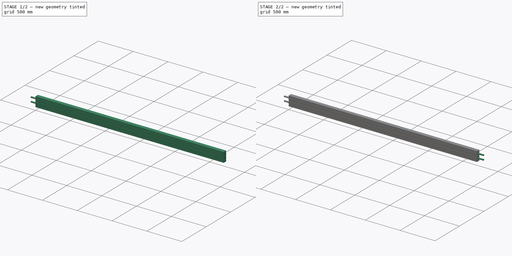
[diagram: build sequence overview — one tinted view per stage of 2, left to right]
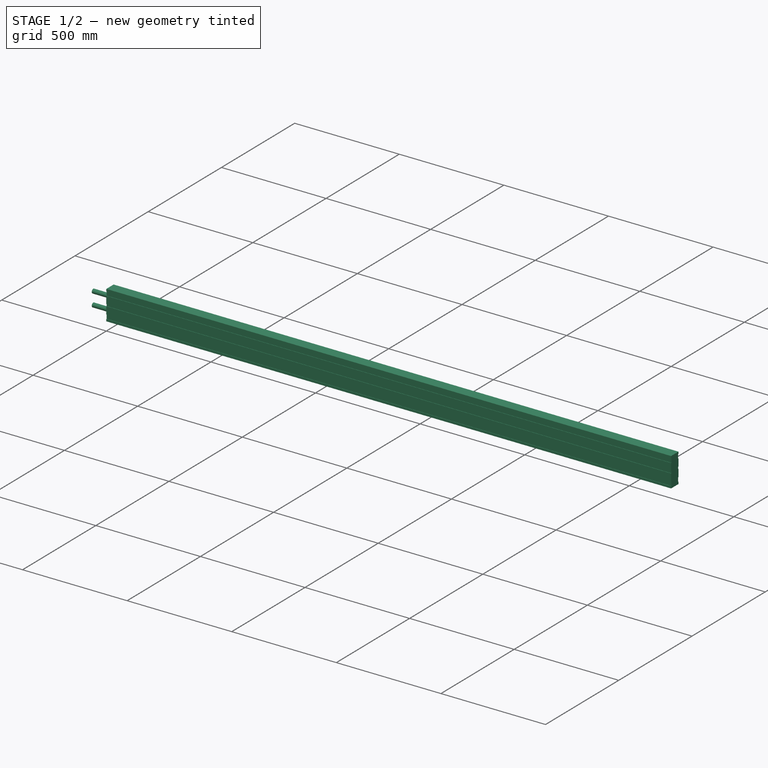
[diagram: stage 1 of 2 — iso view after this stage's code; geometry added in this stage tinted green]
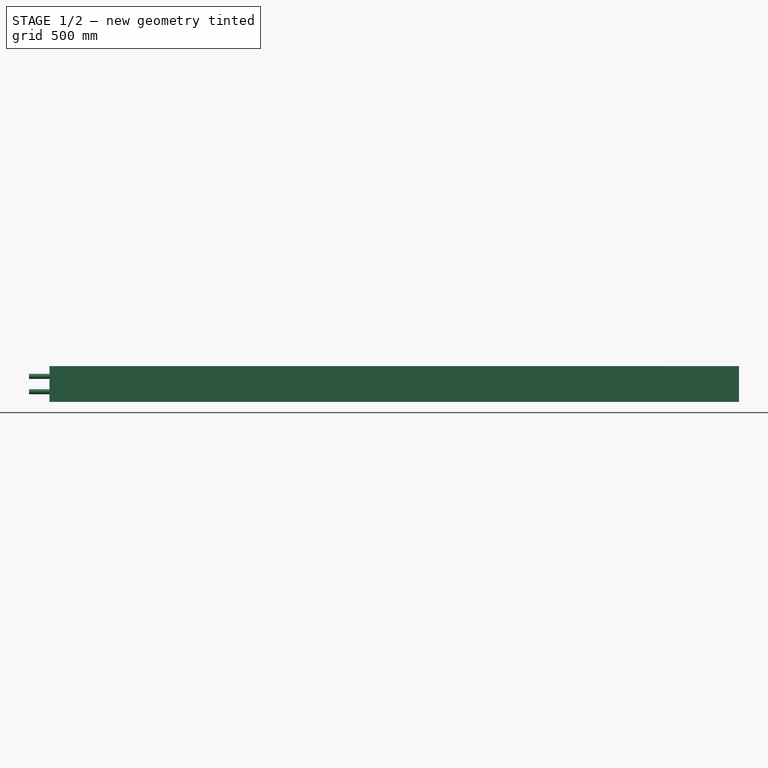
[diagram: stage 1 of 2 — front view after this stage's code; geometry added in this stage tinted green]
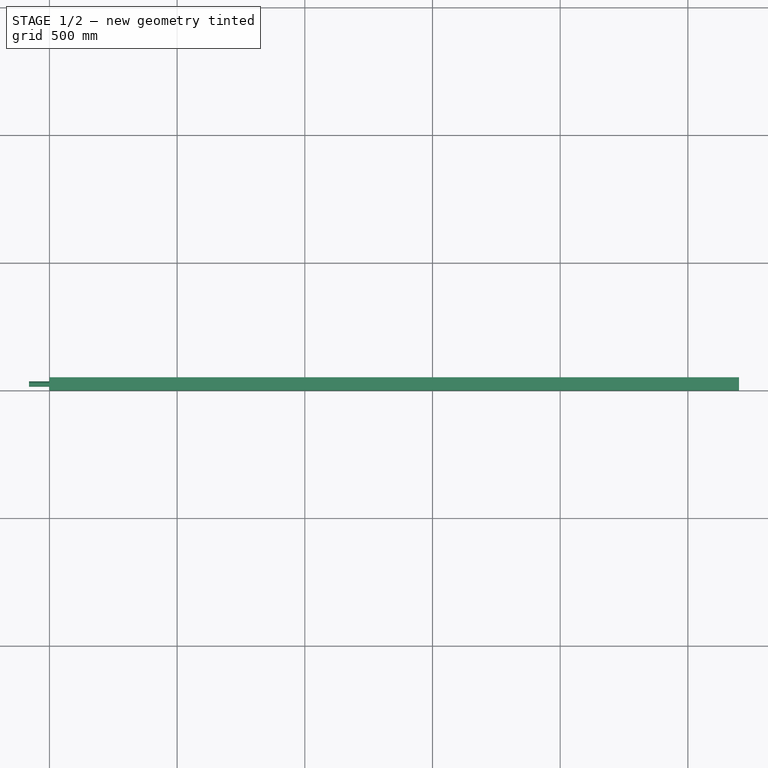
[diagram: stage 1 of 2 — top view after this stage's code; geometry added in this stage tinted green]
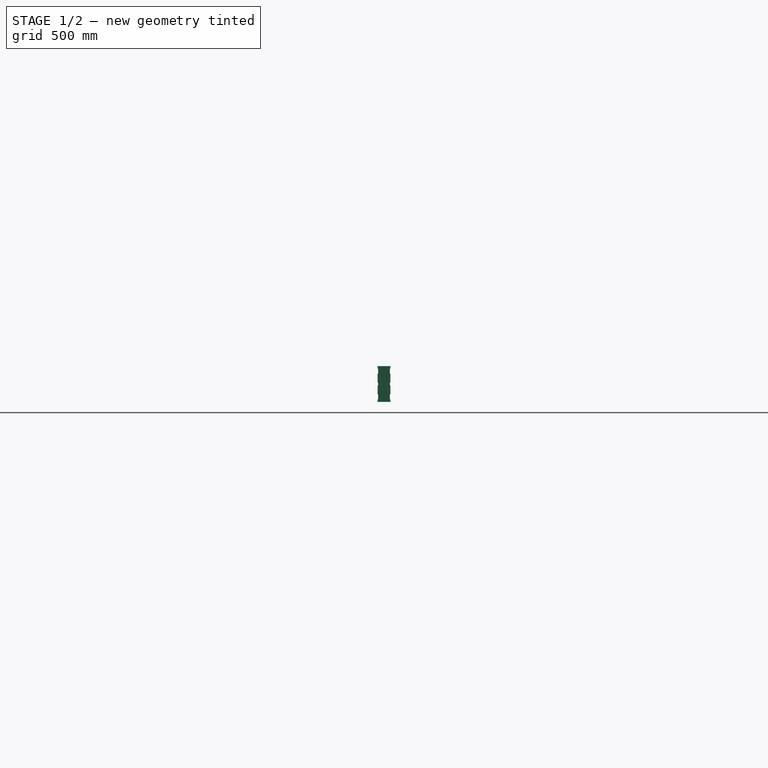
[diagram: stage 1 of 2 — right view after this stage's code; geometry added in this stage tinted green]
FCSTD DOCUMENT  (FreeCAD 0.21R33668 +26 (Git))
Label: load_beam
License: All rights reserved
LicenseURL: https://en.wikipedia.org/wiki/All_rights_reserved
objects: Sketcher::SketchObject×3, PartDesign::Pad×3, PartDesign::Body×1
note: 10 computed .brp shape members not serialized (recipe doc carries the construction recipe); baked Part::Feature solids carry a one-line shape summary decoded from their .brp

FEATURE [Sketcher::SketchObject] Sketch001
  FullyConstrained = true
  MapMode = 5
  Placement = pos=(0,0,0) rot=(0.57735,0.57735,0.57735;2.0944rad)
  Support = -> [YZ_Plane]
  sketch-geometry (28):
    g0: LineSegment StartX=0 StartY=0 StartZ=0 EndX=0 EndY=-10 EndZ=0
    g1: LineSegment StartX=0 StartY=-10 StartZ=0 EndX=2 EndY=-10 EndZ=0
    g2: LineSegment StartX=2 StartY=-10 StartZ=0 EndX=2 EndY=-30 EndZ=0
    g3: LineSegment StartX=2 StartY=-30 StartZ=0 EndX=4e-16 EndY=-30 EndZ=0
    g4: LineSegment StartX=4e-16 StartY=-30 StartZ=0 EndX=4e-16 EndY=-65 EndZ=0
    g5: LineSegment StartX=4e-16 StartY=-65 StartZ=0 EndX=2 EndY=-65 EndZ=0
    g6: LineSegment StartX=2 StartY=-65 StartZ=0 EndX=2 EndY=-75 EndZ=0
    g7: LineSegment StartX=2 StartY=-75 StartZ=0 EndX=0 EndY=-75 EndZ=0
    g8: LineSegment StartX=0 StartY=-75 StartZ=0 EndX=0 EndY=-110 EndZ=0
    g9: LineSegment StartX=0 StartY=-110 StartZ=0 EndX=2 EndY=-110 EndZ=0
    g10: LineSegment StartX=2 StartY=-110 StartZ=0 EndX=2 EndY=-130 EndZ=0
    g11: LineSegment StartX=2 StartY=-130 StartZ=0 EndX=-4e-16 EndY=-130 EndZ=0
    g12: LineSegment StartX=-4e-16 StartY=-130 StartZ=0 EndX=-4e-16 EndY=-140 EndZ=0
    g13: LineSegment StartX=-4e-16 StartY=-140 StartZ=0 EndX=50 EndY=-140 EndZ=0
    g14: LineSegment StartX=50 StartY=-140 StartZ=0 EndX=50 EndY=-130 EndZ=0
    g15: LineSegment StartX=50 StartY=-130 StartZ=0 EndX=48 EndY=-130 EndZ=0
    g16: LineSegment StartX=48 StartY=-130 StartZ=0 EndX=48 EndY=-110 EndZ=0
    g17: LineSegment StartX=50 StartY=-110 StartZ=0 EndX=50 EndY=-75 EndZ=0
    g18: LineSegment StartX=50 StartY=-75 StartZ=0 EndX=48 EndY=-75 EndZ=0
    g19: LineSegment StartX=48 StartY=-75 StartZ=0 EndX=48 EndY=-65 EndZ=0
    g20: LineSegment StartX=50 StartY=-65 StartZ=0 EndX=50 EndY=-30 EndZ=0
    g21: LineSegment StartX=48 StartY=-10 StartZ=0 EndX=50 EndY=-10 EndZ=0
    g22: LineSegment StartX=50 StartY=8.9e-15 StartZ=0 EndX=0 EndY=0 EndZ=0
    g23: LineSegment StartX=50 StartY=-10 StartZ=0 EndX=50 EndY=8.9e-15 EndZ=0
    g24: LineSegment StartX=48 StartY=-30 StartZ=0 EndX=48 EndY=-10 EndZ=0
    g25: LineSegment StartX=50 StartY=-30 StartZ=0 EndX=48 EndY=-30 EndZ=0
    g26: LineSegment StartX=50 StartY=-65 StartZ=0 EndX=48 EndY=-65 EndZ=0
    g27: LineSegment StartX=50 StartY=-110 StartZ=0 EndX=48 EndY=-110 EndZ=0
  constraints (83):
    c: Vertical(g0)
    c: Coincident(g1,g0)
    c: Horizontal(g1)
    c: Coincident(g2,g1)
    c: Vertical(g2)
    c: Coincident(g3,g2)
    c: Horizontal(g3)
    c: Coincident(g4,g3)
    c: Vertical(g4)
    c: Coincident(g5,g4)
    c: Horizontal(g5)
    c: Coincident(g6,g5)
    c: Vertical(g6)
    c: Coincident(g7,g6)
    c: Horizontal(g7)
    c: Coincident(g8,g7)
    c: Vertical(g8)
    c: Coincident(g9,g8)
    c: Horizontal(g9)
    c: Coincident(g10,g9)
    c: Vertical(g10)
    c: Coincident(g11,g10)
    c: Horizontal(g11)
    c: Coincident(g12,g11)
    c: Vertical(g12)
    c: Coincident(g13,g12)
    c: Horizontal(g13)
    c: Coincident(g14,g13)
    c: Vertical(g14)
    c: Coincident(g15,g14)
    c: Horizontal(g15)
    c: Coincident(g16,g15)
    c: Vertical(g16)
    c: Vertical(g17)
    c: Coincident(g18,g17)
    c: Horizontal(g18)
    c: Coincident(g19,g18)
    c: Vertical(g19)
    c: Vertical(g20)
    c: Horizontal(g21)
    c: Coincident(g22,g0)
    c: Coincident(g23,g21)
    c: Coincident(g23,g22)
    c: Vertical(g23)
    c: Coincident(g24,g21)
    c: Vertical(g24)
    c: Coincident(g25,g20)
    c: Coincident(g25,g24)
    c: Horizontal(g25)
    c: Coincident(g26,g20)
    c: Coincident(g26,g19)
    c: Horizontal(g26)
    c: Coincident(g27,g17)
    c: Coincident(g27,g16)
    c: Horizontal(g27)
    c: Angle(g22,g23) = 1.5708
    c: Distance(g22) = 50
    c: Distance(g0) = 10
    c: Distance(g23) = 10
    c: Distance(g0,g2) = 2
    c: Distance(g3,g2) = 2
    c: Distance(g2) = 20
    c: Distance(g21,g24) = 2
    c: Distance(g20,g24) = 2
    c: Distance(g24) = 20
    c: Distance(g4,g6) = 2
    c: Distance(g7,g6) = 2
    c: Distance(g20,g19) = 2
    c: Distance(g17,g19) = 2
    c: Distance(g17,g16) = 2
    c: Distance(g8,g10) = 2
    c: Distance(g11,g10) = 2
    c: Distance(g14,g16) = 2
    c: Distance(g16) = 20
    c: Distance(g10) = 20
    c: Distance(g19) = 10
    c: Distance(g6) = 10
    c: Distance(g10,g13) = 10
    c: Distance(g15,g13) = 10
    c: Distance(g5,g2) = 35
    c: Distance(g19,g24) = 35
    c: Distance(g12,g0) = 140
    c: Coincident(g0,g-1)
FEATURE [PartDesign::Pad] Pad
  Direction = (1,-2e-16,3e-16)
  Length = 2700
  Length2 = 10
  Placement = pos=(0,0,0) rot=(1,1,1;2.0944rad)
  Profile = -> Sketch001
  ReferenceAxis = -> Sketch001 [N_Axis]
  Type = 0
FEATURE [Sketcher::SketchObject] Sketch
  ExternalGeometry = -> [Pad]
  FullyConstrained = true
  MapMode = 5
  Placement = pos=(1e-14,0,0) rot=(0.57735,0.57735,-0.57735;4.18879rad)
  Support = -> [Pad]
  sketch-geometry (2):
    g0: Circle CenterX=25 CenterY=100 CenterZ=0 NormalX=0 NormalY=0 NormalZ=1 AngleXU=0 Radius=10
    g1: Circle CenterX=25 CenterY=40 CenterZ=0 NormalX=0 NormalY=0 NormalZ=1 AngleXU=0 Radius=10
  constraints (6):
    c: Distance(g0,g-3) = 40
    c: Distance(g0,g-2) = 25
    c: Equal(g0,g1)
    c: Diameter(g0) = 20
    c: Distance(g1,g-2) = 25
    c: Distance(g1,g-1) = 40
FEATURE [PartDesign::Pad] Pad001
  BaseFeature = -> Pad
  Direction = (-1,4e-16,-4e-16)
  Length = 80
  Length2 = 10
  Placement = pos=(0,0,0) rot=(1,1,1;2.0944rad)
  Profile = -> Sketch
  ReferenceAxis = -> Sketch [N_Axis]
  Type = 0
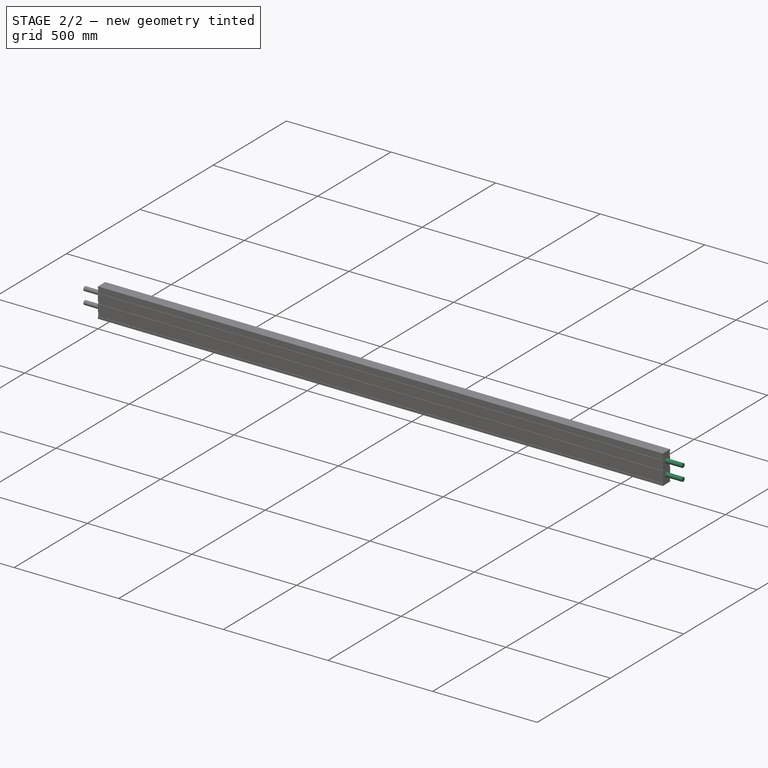
[diagram: stage 2 of 2 — iso view after this stage's code; geometry added in this stage tinted green]
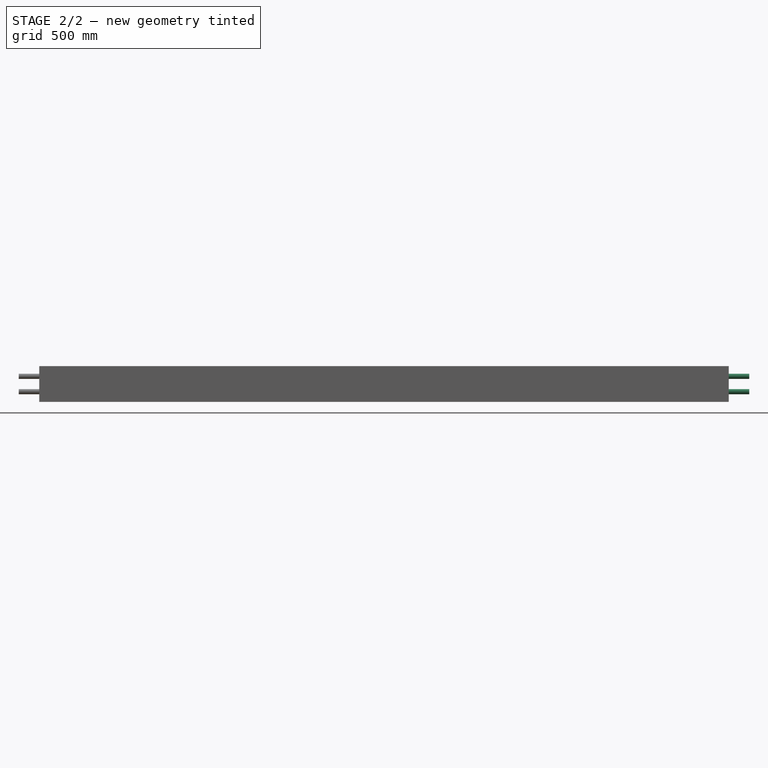
[diagram: stage 2 of 2 — front view after this stage's code; geometry added in this stage tinted green]
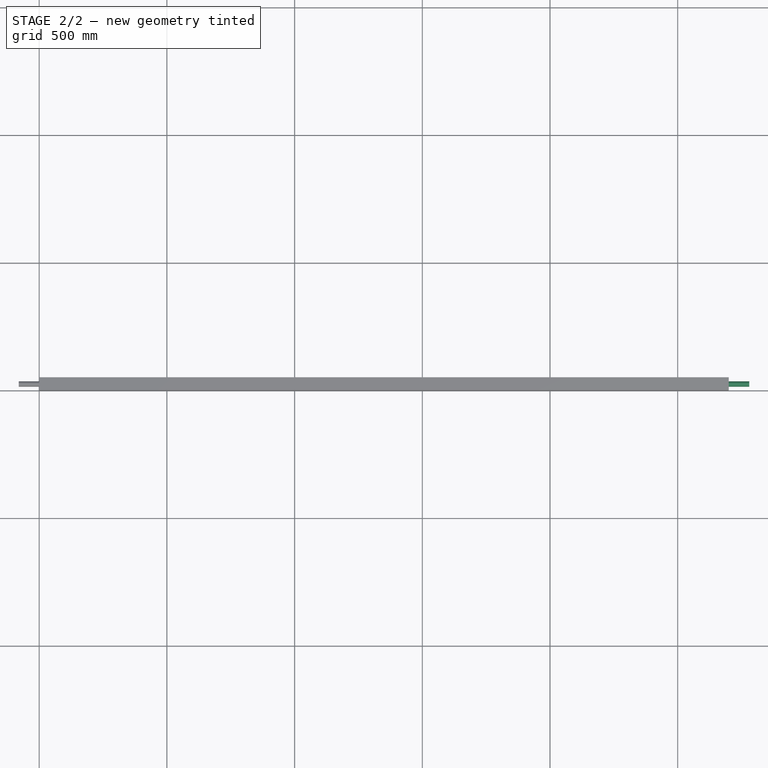
[diagram: stage 2 of 2 — top view after this stage's code; geometry added in this stage tinted green]
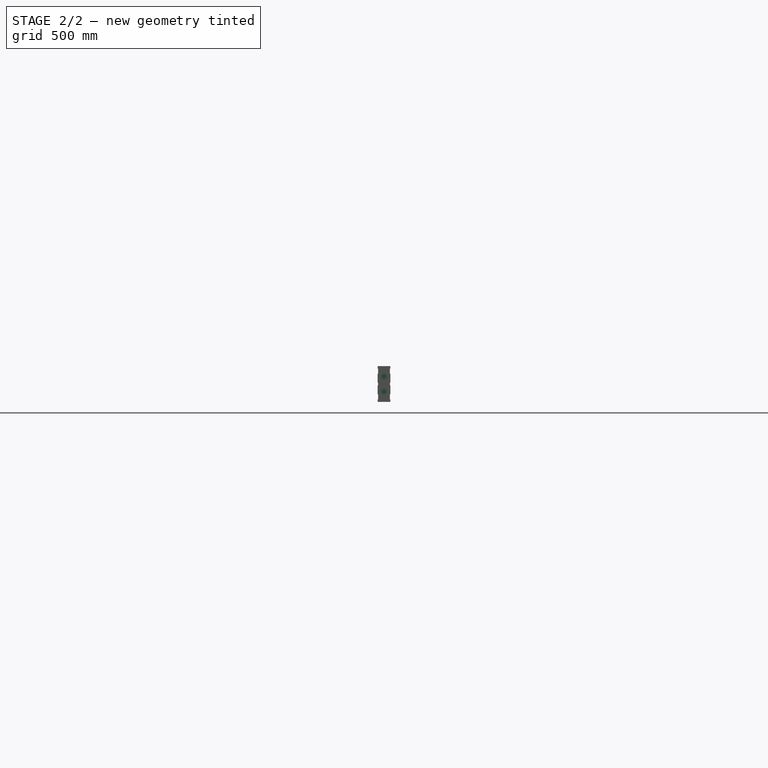
[diagram: stage 2 of 2 — right view after this stage's code; geometry added in this stage tinted green]
FEATURE [Sketcher::SketchObject] Sketch002
  ExternalGeometry = -> [Pad001]
  FullyConstrained = true
  MapMode = 5
  Placement = pos=(2700,-1.7986e-12,1.199e-12) rot=(0.57735,0.57735,0.57735;2.0944rad)
  Support = -> [Pad001]
  sketch-geometry (2):
    g0: Circle CenterX=25 CenterY=-40 CenterZ=0 NormalX=0 NormalY=0 NormalZ=1 AngleXU=0 Radius=10
    g1: Circle CenterX=25 CenterY=-100 CenterZ=0 NormalX=0 NormalY=0 NormalZ=1 AngleXU=0 Radius=10
  constraints (6):
    c: Equal(g1,g0)
    c: Diameter(g1) = 20
    c: Distance(g0,g-2) = 25
    c: Distance(g1,g-2) = 25
    c: Distance(g1,g-3) = 40
    c: Distance(g0,g-1) = 40
FEATURE [PartDesign::Pad] Pad002
  BaseFeature = -> Pad001
  Direction = (1,-9e-16,6e-16)
  Length = 80
  Length2 = 10
  Placement = pos=(0,0,0) rot=(1,1,1;2.0944rad)
  Profile = -> Sketch002
  ReferenceAxis = -> Sketch002 [N_Axis]
  Type = 0
FEATURE [PartDesign::Body] Body
  Group = -> [Sketch001,Pad,Sketch,Pad001,Sketch002,Pad002]
  Origin = -> Origin
  Tip = -> Pad002
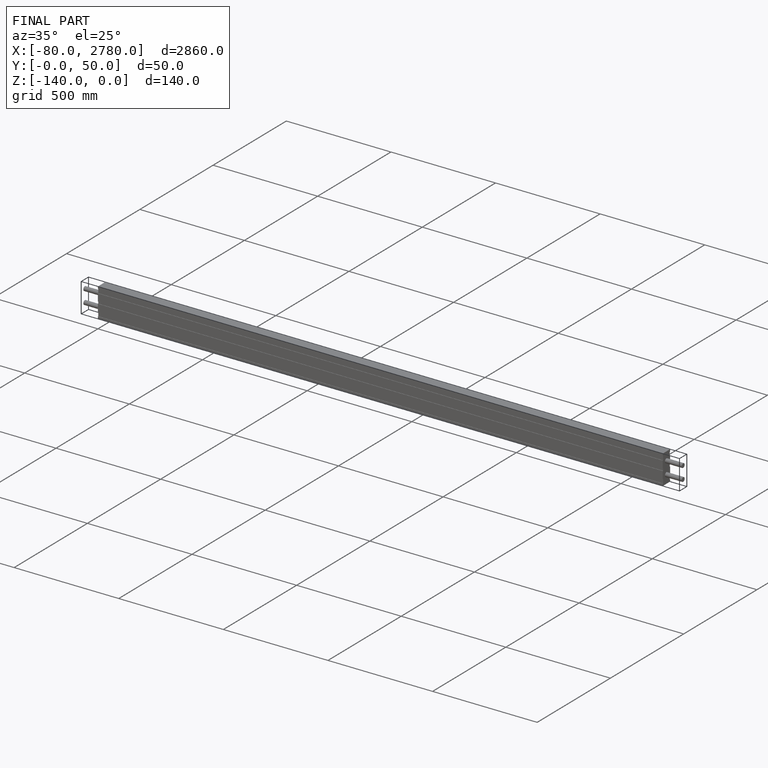
[diagram: finished part — iso view with bounding-box wireframe]
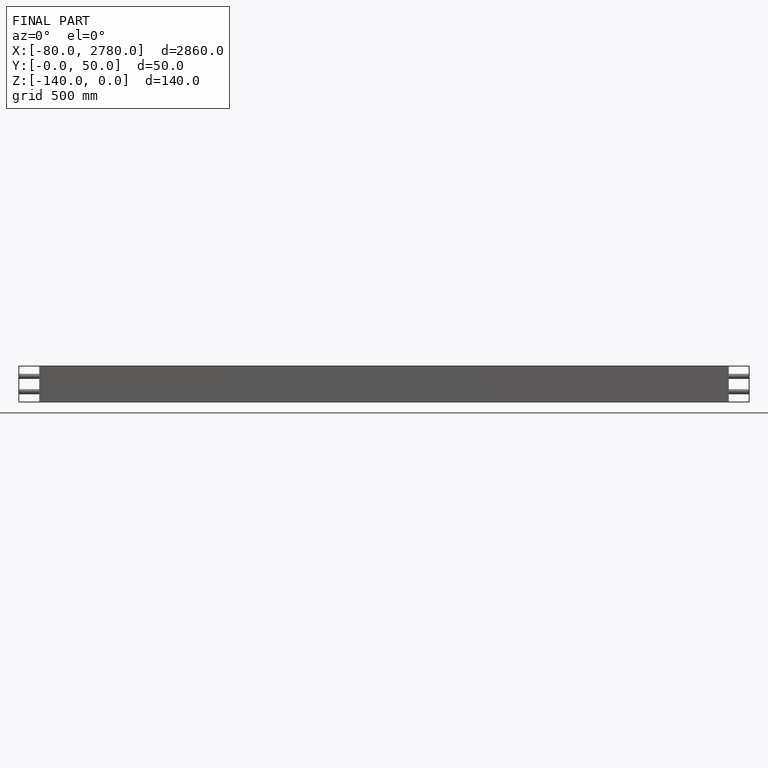
[diagram: finished part — front view with bounding-box wireframe]
